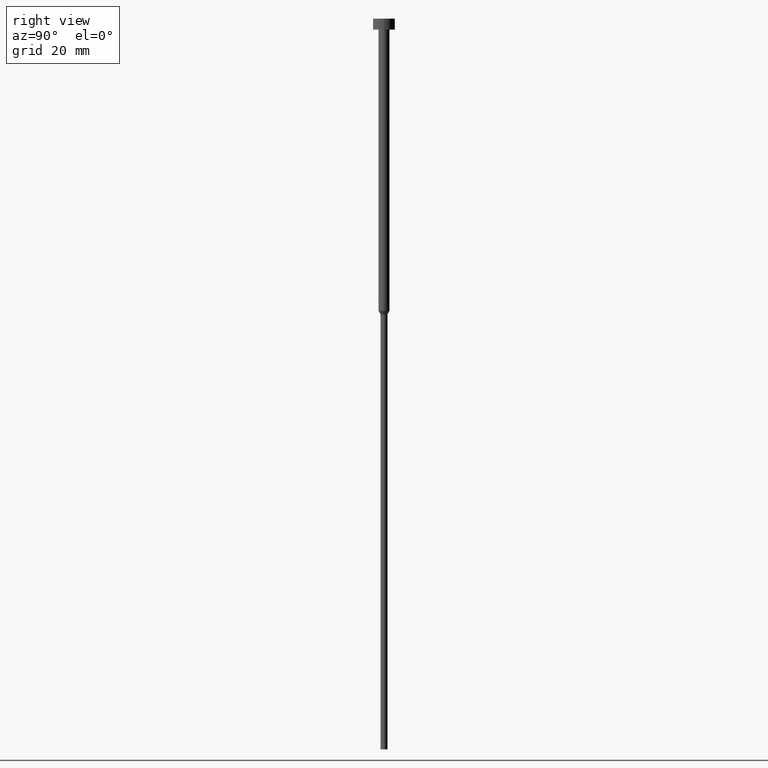
[diagram: clean part render]
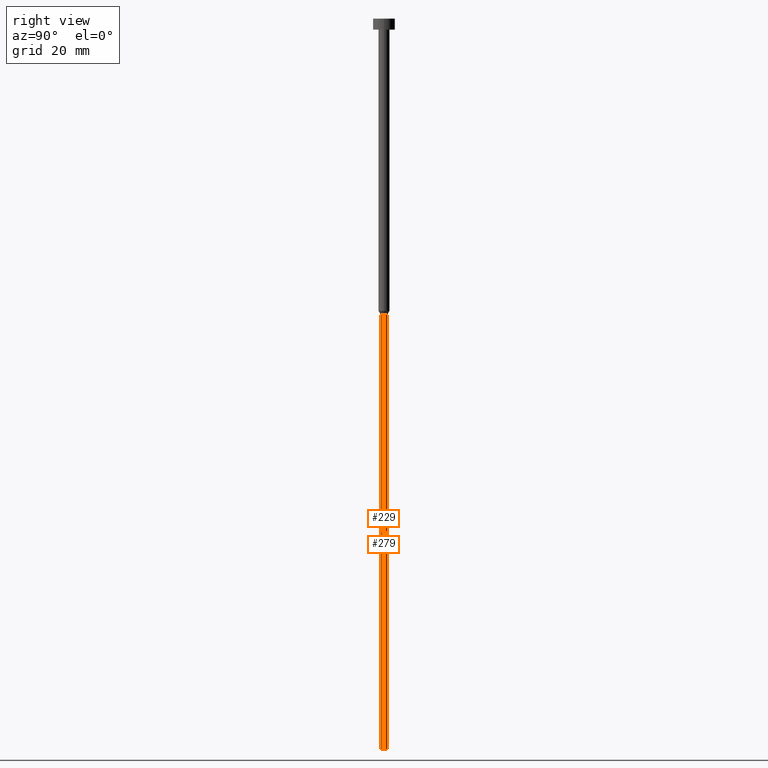
[diagram: same view with one multi-face feature highlighted, each face labeled with its STEP entity id]
A machine part, right view. The highlighted faces form ONE feature: a constant-radius fillet chain: 2 tangent blend faces with common blend radius 0.95 mm. The faces share edges in the B-rep.
Their STEP definitions:
[1] entity #229 (Cylinder):
#5 = DIRECTION ( 'NONE',  ( -0.000000000000000000, -0.000000000000000000, 1.000000000000000000 ) ) ;
#20 = CARTESIAN_POINT ( 'NONE',  ( -0.9500000000000001776, 1.163414459189985929E-16, -80.95262794416288443 ) ) ;
#47 = CARTESIAN_POINT ( 'NONE',  ( -0.9499999999999999556, 1.163414459189985682E-16, 0.000000000000000000 ) ) ;
#59 = VECTOR ( 'NONE', #264, 1000.000000000000000 ) ;
#60 = ORIENTED_EDGE ( 'NONE', *, *, #257, .T. ) ;
#67 = CARTESIAN_POINT ( 'NONE',  ( 0.9500000000000000666, 0.000000000000000000, -80.95262794416288443 ) ) ;
#76 = DIRECTION ( 'NONE',  ( -0.000000000000000000, -0.000000000000000000, 1.000000000000000000 ) ) ;
#79 = DIRECTION ( 'NONE',  ( 1.000000000000000000, 0.000000000000000000, 0.000000000000000000 ) ) ;
#85 = VERTEX_POINT ( 'NONE', #20 ) ;
#95 = VERTEX_POINT ( 'NONE', #67 ) ;
#104 = CARTESIAN_POINT ( 'NONE',  ( 0.9499999999999998446, 0.000000000000000000, -200.0000000000000000 ) ) ;
#117 = CIRCLE ( 'NONE', #238, 0.9499999999999998446 ) ;
#130 = LINE ( 'NONE', #47, #59 ) ;
#132 = CYLINDRICAL_SURFACE ( 'NONE', #308, 0.9499999999999999556 ) ;
#137 = EDGE_LOOP ( 'NONE', ( #139, #60, #170, #285 ) ) ;
#139 = ORIENTED_EDGE ( 'NONE', *, *, #212, .F. ) ;
#144 = LINE ( 'NONE', #341, #220 ) ;
#166 = VERTEX_POINT ( 'NONE', #104 ) ;
#170 = ORIENTED_EDGE ( 'NONE', *, *, #323, .T. ) ;
#178 = EDGE_CURVE ( 'NONE', #85, #95, #209, .T. ) ;
#184 = DIRECTION ( 'NONE',  ( 1.000000000000000000, 0.000000000000000000, 0.000000000000000000 ) ) ;
#192 = DIRECTION ( 'NONE',  ( -0.000000000000000000, -0.000000000000000000, 1.000000000000000000 ) ) ;
#203 = DIRECTION ( 'NONE',  ( -0.000000000000000000, -0.000000000000000000, 1.000000000000000000 ) ) ;
#209 = CIRCLE ( 'NONE', #215, 0.9500000000000000666 ) ;
#211 = CARTESIAN_POINT ( 'NONE',  ( 0.000000000000000000, 0.000000000000000000, 0.000000000000000000 ) ) ;
#212 = EDGE_CURVE ( 'NONE', #250, #85, #130, .T. ) ;
#215 = AXIS2_PLACEMENT_3D ( 'NONE', #295, #203, #319 ) ;
#220 = VECTOR ( 'NONE', #192, 1000.000000000000000 ) ;
#229 = ADVANCED_FACE ( 'NONE', ( #263 ), #132, .T. ) ;
#238 = AXIS2_PLACEMENT_3D ( 'NONE', #302, #5, #79 ) ;
#250 = VERTEX_POINT ( 'NONE', #300 ) ;
#257 = EDGE_CURVE ( 'NONE', #250, #166, #117, .T. ) ;
#263 = FACE_OUTER_BOUND ( 'NONE', #137, .T. ) ;
#264 = DIRECTION ( 'NONE',  ( -0.000000000000000000, -0.000000000000000000, 1.000000000000000000 ) ) ;
#285 = ORIENTED_EDGE ( 'NONE', *, *, #178, .F. ) ;
#295 = CARTESIAN_POINT ( 'NONE',  ( 0.000000000000000000, 0.000000000000000000, -80.95262794416288443 ) ) ;
#300 = CARTESIAN_POINT ( 'NONE',  ( -0.9499999999999998446, 1.163414459189985682E-16, -200.0000000000000000 ) ) ;
#302 = CARTESIAN_POINT ( 'NONE',  ( 0.000000000000000000, 0.000000000000000000, -200.0000000000000000 ) ) ;
#308 = AXIS2_PLACEMENT_3D ( 'NONE', #211, #76, #184 ) ;
#319 = DIRECTION ( 'NONE',  ( 1.000000000000000000, 0.000000000000000000, 0.000000000000000000 ) ) ;
#323 = EDGE_CURVE ( 'NONE', #166, #95, #144, .T. ) ;
#341 = CARTESIAN_POINT ( 'NONE',  ( 0.9499999999999999556, 0.000000000000000000, 0.000000000000000000 ) ) ;
[2] entity #279 (Cylinder):
#2 = DIRECTION ( 'NONE',  ( -0.000000000000000000, -0.000000000000000000, 1.000000000000000000 ) ) ;
#16 = CARTESIAN_POINT ( 'NONE',  ( 0.000000000000000000, 0.000000000000000000, -200.0000000000000000 ) ) ;
#20 = CARTESIAN_POINT ( 'NONE',  ( -0.9500000000000001776, 1.163414459189985929E-16, -80.95262794416288443 ) ) ;
#25 = EDGE_CURVE ( 'NONE', #95, #85, #219, .T. ) ;
#47 = CARTESIAN_POINT ( 'NONE',  ( -0.9499999999999999556, 1.163414459189985682E-16, 0.000000000000000000 ) ) ;
#51 = DIRECTION ( 'NONE',  ( 1.000000000000000000, 0.000000000000000000, 0.000000000000000000 ) ) ;
#57 = ORIENTED_EDGE ( 'NONE', *, *, #323, .F. ) ;
#59 = VECTOR ( 'NONE', #264, 1000.000000000000000 ) ;
#65 = AXIS2_PLACEMENT_3D ( 'NONE', #16, #154, #261 ) ;
#67 = CARTESIAN_POINT ( 'NONE',  ( 0.9500000000000000666, 0.000000000000000000, -80.95262794416288443 ) ) ;
#81 = CYLINDRICAL_SURFACE ( 'NONE', #266, 0.9499999999999999556 ) ;
#85 = VERTEX_POINT ( 'NONE', #20 ) ;
#88 = ORIENTED_EDGE ( 'NONE', *, *, #212, .T. ) ;
#95 = VERTEX_POINT ( 'NONE', #67 ) ;
#104 = CARTESIAN_POINT ( 'NONE',  ( 0.9499999999999998446, 0.000000000000000000, -200.0000000000000000 ) ) ;
#111 = CARTESIAN_POINT ( 'NONE',  ( 0.000000000000000000, 0.000000000000000000, 0.000000000000000000 ) ) ;
#130 = LINE ( 'NONE', #47, #59 ) ;
#140 = AXIS2_PLACEMENT_3D ( 'NONE', #337, #311, #173 ) ;
#144 = LINE ( 'NONE', #341, #220 ) ;
#154 = DIRECTION ( 'NONE',  ( -0.000000000000000000, -0.000000000000000000, 1.000000000000000000 ) ) ;
#156 = EDGE_CURVE ( 'NONE', #166, #250, #328, .T. ) ;
#166 = VERTEX_POINT ( 'NONE', #104 ) ;
#173 = DIRECTION ( 'NONE',  ( 1.000000000000000000, 0.000000000000000000, 0.000000000000000000 ) ) ;
#192 = DIRECTION ( 'NONE',  ( -0.000000000000000000, -0.000000000000000000, 1.000000000000000000 ) ) ;
#193 = ORIENTED_EDGE ( 'NONE', *, *, #25, .F. ) ;
#212 = EDGE_CURVE ( 'NONE', #250, #85, #130, .T. ) ;
#219 = CIRCLE ( 'NONE', #140, 0.9500000000000000666 ) ;
#220 = VECTOR ( 'NONE', #192, 1000.000000000000000 ) ;
#246 = EDGE_LOOP ( 'NONE', ( #251, #88, #193, #57 ) ) ;
#250 = VERTEX_POINT ( 'NONE', #300 ) ;
#251 = ORIENTED_EDGE ( 'NONE', *, *, #156, .T. ) ;
#261 = DIRECTION ( 'NONE',  ( 1.000000000000000000, 0.000000000000000000, 0.000000000000000000 ) ) ;
#264 = DIRECTION ( 'NONE',  ( -0.000000000000000000, -0.000000000000000000, 1.000000000000000000 ) ) ;
#266 = AXIS2_PLACEMENT_3D ( 'NONE', #111, #2, #51 ) ;
#273 = FACE_OUTER_BOUND ( 'NONE', #246, .T. ) ;
#279 = ADVANCED_FACE ( 'NONE', ( #273 ), #81, .T. ) ;
#300 = CARTESIAN_POINT ( 'NONE',  ( -0.9499999999999998446, 1.163414459189985682E-16, -200.0000000000000000 ) ) ;
#311 = DIRECTION ( 'NONE',  ( -0.000000000000000000, -0.000000000000000000, 1.000000000000000000 ) ) ;
#323 = EDGE_CURVE ( 'NONE', #166, #95, #144, .T. ) ;
#328 = CIRCLE ( 'NONE', #65, 0.9499999999999998446 ) ;
#337 = CARTESIAN_POINT ( 'NONE',  ( 0.000000000000000000, 0.000000000000000000, -80.95262794416288443 ) ) ;
#341 = CARTESIAN_POINT ( 'NONE',  ( 0.9499999999999999556, 0.000000000000000000, 0.000000000000000000 ) ) ;